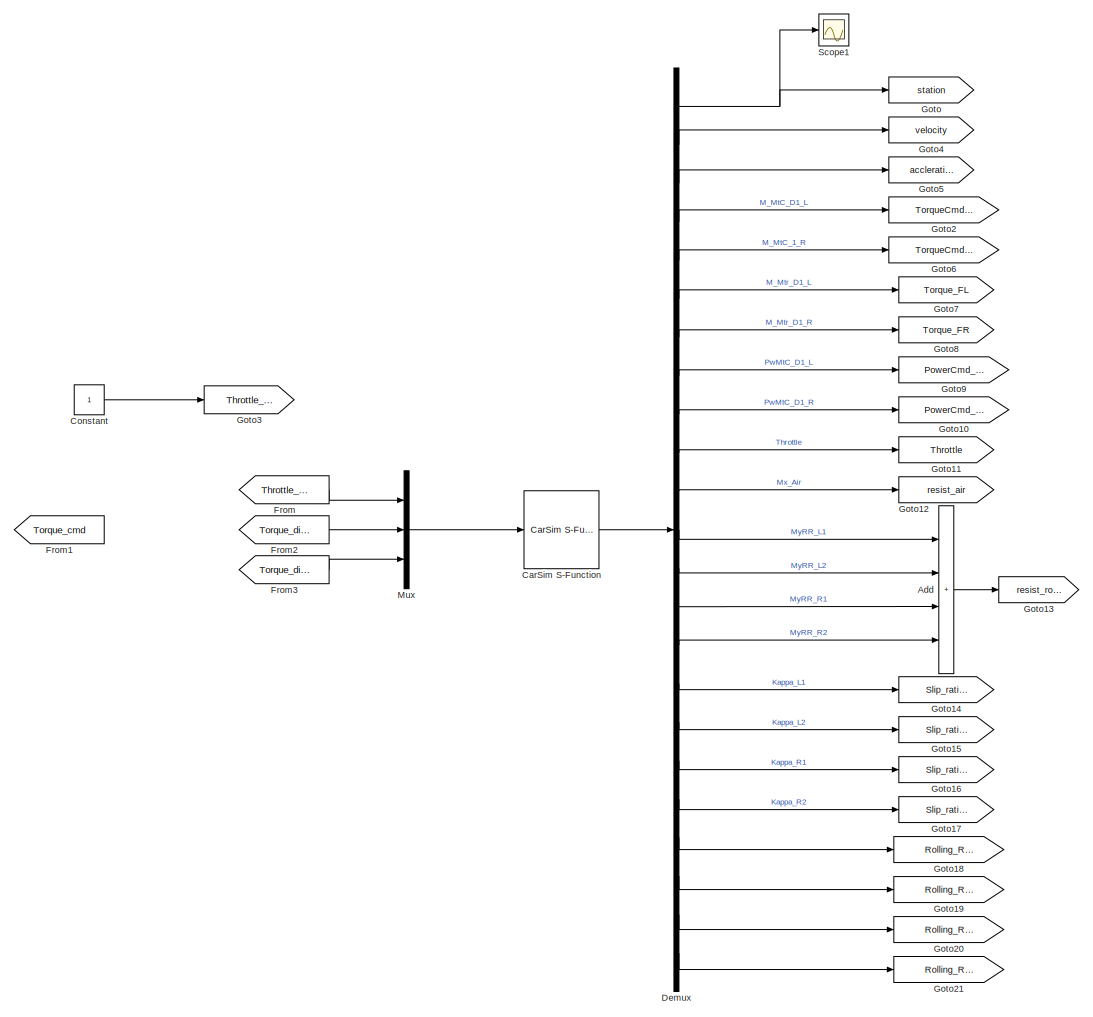
[diagram: root canvas - part 1/2, right side, full height]
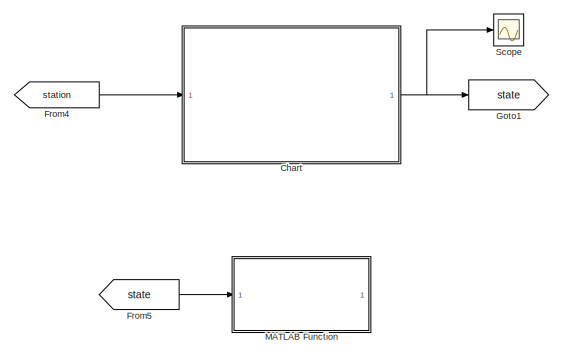
[diagram: root canvas - part 2/2, middle left region]
MODEL slx_3b0304f86ec5
KIND model
CONFIG AbsTol = auto
CONFIG EnableMultiTasking = off
CONFIG FixedStep = 0.001
CONFIG MaxStep = auto
CONFIG MinStep = auto
CONFIG RelTol = 1e-3
CONFIG SampleTimeConstraint = Unconstrained
CONFIG SolverName = FixedStepAuto
CONFIG StartTime = 0.0
CONFIG StopTime = 50
BLOCK [Sum] Add
  IconShape = rectangular
  Inputs = ++++
BLOCK [Reference] CarSim S-Function  REF=Solver_SF/CarSim S-Function
  Priority = 1
  SourceBlock = Solver_SF/CarSim S-Function
  SourceProductName = CarSim S-Function
  SourceType = Vehicle math model library
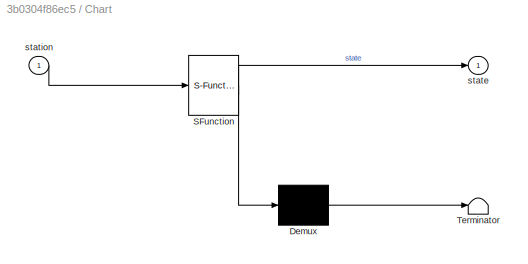
BLOCK [SubSystem] Chart
  ErrorFcn = Stateflow.Translate.translate
  PermitHierarchicalResolution = ExplicitOnly
  SFBlockType = Chart
  TreatAsAtomicUnit = on
BLOCK [Demux] Chart/ Demux 
  Outputs = 1
BLOCK [S-Function] Chart/ SFunction 
  EnableBusSupport = on
  FunctionName = sf_sfun
  PortCounts = [1 2]
  SFcnIsStateOwnerBlock = off
  SFunctionDeploymentMode = off
  Tag = Stateflow S-Function 3
BLOCK [Terminator] Chart/ Terminator 
BLOCK [Outport] Chart/state
BLOCK [Inport] Chart/station
BLOCK [Constant] Constant
BLOCK [Demux] Demux
  Outputs = 23
BLOCK [From] From
  GotoTag = Throttle_input
BLOCK [From] From1
  GotoTag = Torque_cmd
BLOCK [From] From2
  GotoTag = Torque_diff_FL
BLOCK [From] From3
  GotoTag = Torque_diff_FR
BLOCK [From] From4
  GotoTag = station
BLOCK [From] From5
  GotoTag = state
BLOCK [Goto] Goto
  GotoTag = station
BLOCK [Goto] Goto1
  GotoTag = state
BLOCK [Goto] Goto10
  GotoTag = PowerCmd_FR
BLOCK [Goto] Goto11
  GotoTag = Throttle
BLOCK [Goto] Goto12
  GotoTag = resist_air
BLOCK [Goto] Goto13
  GotoTag = resist_roll
BLOCK [Goto] Goto14
  GotoTag = Slip_ratio_FL
BLOCK [Goto] Goto15
  GotoTag = Slip_ratio_RL
BLOCK [Goto] Goto16
  GotoTag = Slip_ratio_FR
BLOCK [Goto] Goto17
  GotoTag = Slip_ratio_RR
BLOCK [Goto] Goto18
  GotoTag = Rolling_Rad_FL
BLOCK [Goto] Goto19
  GotoTag = Rolling_Rad_RL
BLOCK [Goto] Goto2
  GotoTag = TorqueCmd_FL
BLOCK [Goto] Goto20
  GotoTag = Rolling_Rad_FR
BLOCK [Goto] Goto21
  GotoTag = Rolling_Rad_RR
BLOCK [Goto] Goto3
  GotoTag = Throttle_input
BLOCK [Goto] Goto4
  GotoTag = velocity
BLOCK [Goto] Goto5
  GotoTag = accleration
BLOCK [Goto] Goto6
  GotoTag = TorqueCmd_FR
BLOCK [Goto] Goto7
  GotoTag = Torque_FL
BLOCK [Goto] Goto8
  GotoTag = Torque_FR
BLOCK [Goto] Goto9
  GotoTag = PowerCmd_FL
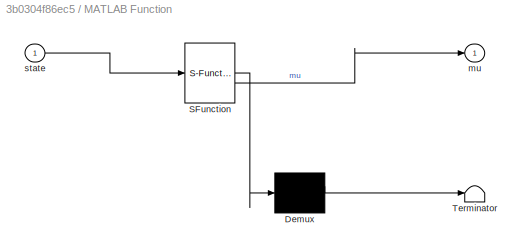
BLOCK [SubSystem] MATLAB Function
  ErrorFcn = Stateflow.Translate.translate
  PermitHierarchicalResolution = ExplicitOnly
  SFBlockType = MATLAB Function
  TreatAsAtomicUnit = on
BLOCK [Demux] MATLAB Function/ Demux 
  Outputs = 1
BLOCK [S-Function] MATLAB Function/ SFunction 
  EnableBusSupport = on
  FunctionName = sf_sfun
  PortCounts = [1 2]
  SFcnIsStateOwnerBlock = off
  SFunctionDeploymentMode = off
  Tag = Stateflow S-Function 2
BLOCK [Terminator] MATLAB Function/ Terminator 
BLOCK [Outport] MATLAB Function/mu
BLOCK [Inport] MATLAB Function/state
BLOCK [Mux] Mux
  DisplayOption = bar
  Inputs = 3
BLOCK [Scope] Scope
  Floating = off
  NumInputPorts = 1
  ScopeSpecificationString = Simulink.scopes.TimeScopeBlockCfg('CurrentConfiguration', extmgr.ConfigurationSet(extmgr.Configuration('Core','General UI',true),extmgr.Configuration('Core','Source UI',true),extmgr.Configuration('Sources','WiredSimulink',true),extmgr.Configuration('Visuals','Time Domain',true,'SerializedDisplays',{struct('MinYLimReal','-1.00000','MaxYLimReal','1.00000','YLabelReal','','MinYLimMag','0.00000','MaxY...<+1350ch>
BLOCK [Scope] Scope1
  Floating = off
  NumInputPorts = 1
  ScopeSpecificationString = Simulink.scopes.TimeScopeBlockCfg('CurrentConfiguration', extmgr.ConfigurationSet(extmgr.Configuration('Core','General UI',true),extmgr.Configuration('Core','Source UI',true),extmgr.Configuration('Sources','WiredSimulink',true,'DataLoggingVariableName','ScopeData1'),extmgr.Configuration('Visuals','Time Domain',true,'SerializedDisplays',{struct('MinYLimReal','-76.29885','MaxYLimReal','686.68965','Y...<+1406ch>
LINE Add:1 -> Goto13:1
LINE CarSim S-Function:1 -> Demux:1
NET Chart:1 -> Goto1:1, Scope:1
LINE Constant:1 -> Goto3:1
NET Demux:1 -> Goto:1, Scope1:1
LINE Demux:10 -> Goto11:1
LINE Demux:11 -> Goto12:1
LINE Demux:12 -> Add:1
LINE Demux:13 -> Add:2
LINE Demux:14 -> Add:3
LINE Demux:15 -> Add:4
LINE Demux:16 -> Goto14:1
LINE Demux:17 -> Goto15:1
LINE Demux:18 -> Goto16:1
LINE Demux:19 -> Goto17:1
LINE Demux:2 -> Goto4:1
LINE Demux:20 -> Goto18:1
LINE Demux:21 -> Goto19:1
LINE Demux:22 -> Goto20:1
LINE Demux:23 -> Goto21:1
LINE Demux:3 -> Goto5:1
LINE Demux:4 -> Goto2:1
LINE Demux:5 -> Goto6:1
LINE Demux:6 -> Goto7:1
LINE Demux:7 -> Goto8:1
LINE Demux:8 -> Goto9:1
LINE Demux:9 -> Goto10:1
LINE From2:1 -> Mux:2
LINE From3:1 -> Mux:3
LINE From4:1 -> Chart:1
LINE From5:1 -> MATLAB Function:1
LINE From:1 -> Mux:1
LINE Mux:1 -> CarSim S-Function:1
note: NET lines group one-source signal fan-out (src -> all destinations, sorted); 1:1 wires keep LINE
CHART MATLAB Function states=1 transitions=1
  STATE_LABEL 'eML_blk_kernel()'
  STATE_LABEL 'SCRIPT:\nfunction mu = fcn(state)\n\nmu = state;\n'
CHART Chart states=4 transitions=6
  STATE_LABEL 'INIT\nen:\nstate=0;\n'
  STATE_LABEL 'Ice\nen:\nstate=1;\n'
  STATE_LABEL 'Concrete\nen:\nstate=2;'
  STATE_LABEL 'SplitMu\nen:\nstate=3;'
CHART  states=0 transitions=0
CHART  states=0 transitions=0
